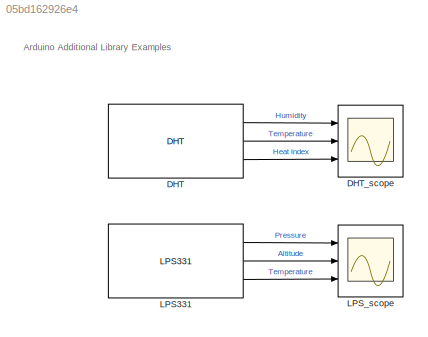
MODEL slx_05bd162926e4
KIND model
CONFIG AbsTol = auto
CONFIG EnableMultiTasking = on
CONFIG FixedStep = 0.1
CONFIG MaxStep = auto
CONFIG MinStep = auto
CONFIG RelTol = 1e-3
CONFIG SampleTimeConstraint = Unconstrained
CONFIG Solver = FixedStepDiscrete
CONFIG SolverName = FixedStepDiscrete
CONFIG StartTime = 0.0
CONFIG StopTime = inf
BLOCK [Reference] DHT  REF=Arduino_Additional_Lib/DHT
  AttributesFormatString = Pin %<Pin>
  Ports = [0, 3]
  SourceBlock = Arduino_Additional_Lib/DHT
  SourceType = Arduino DHT Sensor
BLOCK [Scope] DHT_scope
  NumInputPorts = 3
  Ports = [3]
  ScopeSpecificationString = Simulink.scopes.TimeScopeBlockCfg('CurrentConfiguration', extmgr.ConfigurationSet(extmgr.Configuration('Core','General UI',true),extmgr.Configuration('Core','Source UI',true),extmgr.Configuration('Sources','WiredSimulink',true),extmgr.Configuration('Visuals','Time Domain',true,'SerializedDisplays',{struct('MinYLimReal','40.875','MaxYLimReal','42.125','YLabelReal','','MinYLimMag','40.875','MaxYLimM...<+2639ch>
BLOCK [Reference] LPS331  REF=Arduino_Additional_Lib/LPS331
  AttributesFormatString = I2C
  Ports = [0, 3]
  SourceBlock = Arduino_Additional_Lib/LPS331
  SourceType = Arduino LPS331 Sensor
BLOCK [Scope] LPS_scope
  NumInputPorts = 3
  Ports = [3]
  ScopeSpecificationString = Simulink.scopes.TimeScopeBlockCfg('CurrentConfiguration', extmgr.ConfigurationSet(extmgr.Configuration('Core','General UI',true),extmgr.Configuration('Core','Source UI',true),extmgr.Configuration('Sources','WiredSimulink',true,'DataLoggingVariableName','ScopeData1'),extmgr.Configuration('Visuals','Time Domain',true,'SerializedDisplays',{struct('MinYLimReal','1010.70383','MaxYLimReal','1011.14359',...<+2670ch>
ANNOTATION (root): Arduino Additional Library Examples
LINE DHT:1 -> DHT_scope:1
LINE DHT:2 -> DHT_scope:2
LINE DHT:3 -> DHT_scope:3
LINE LPS331:1 -> LPS_scope:1
LINE LPS331:2 -> LPS_scope:2
LINE LPS331:3 -> LPS_scope:3
